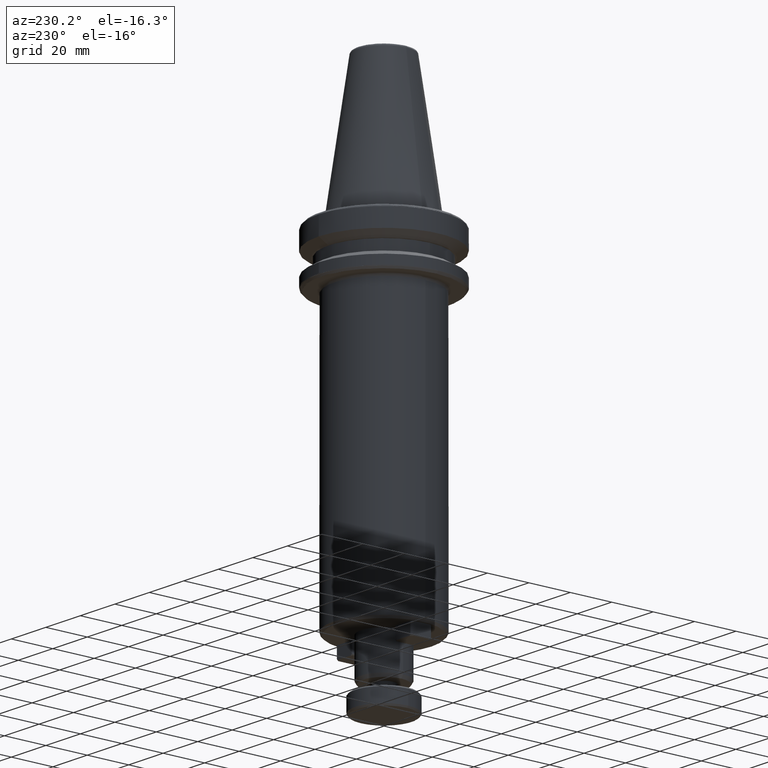
[diagram: clean part render]
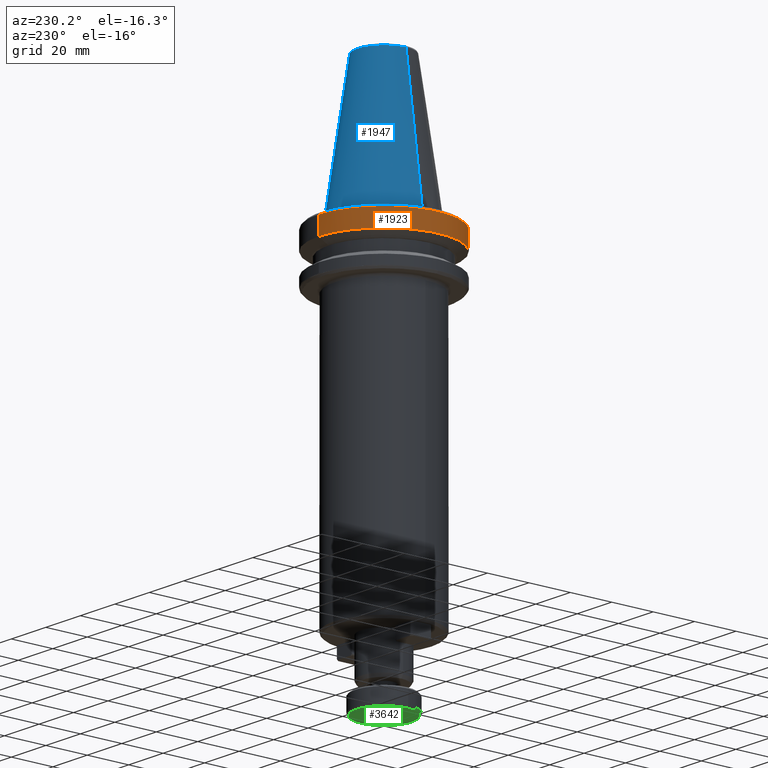
[diagram: same view with three faces highlighted in distinct colors, each labeled with its STEP entity id]
A machine part, auxiliary view with three faces highlighted in distinct colors.
Their STEP definitions:

[orange] entity #1923 — the highlighted cylindrical surface (partial cylindrical patch) has radius 31.5 mm, axis along (0, -0, 1).
#2 = AXIS2_PLACEMENT_3D ( 'NONE', #184, #1197, #1149 ) ;
#77 = CARTESIAN_POINT ( 'NONE',  ( 0.0000000000000000000, 0.0000000000000000000, -3.165685424999995100 ) ) ;
#85 = DIRECTION ( 'NONE',  ( 0.0000000000000000000, 0.0000000000000000000, 1.000000000000000000 ) ) ;
#102 = DIRECTION ( 'NONE',  ( 1.000000000000000000, 0.0000000000000000000, -1.514441129821022100E-016 ) ) ;
#125 = VERTEX_POINT ( 'NONE', #1668 ) ;
#139 = CIRCLE ( 'NONE', #1714, 31.50000000000000000 ) ;
#184 = CARTESIAN_POINT ( 'NONE',  ( 0.0000000000000000000, 0.0000000000000000000, -11.59985799400000100 ) ) ;
#299 = VERTEX_POINT ( 'NONE', #2197 ) ;
#364 = CARTESIAN_POINT ( 'NONE',  ( -8.717453372924149200, -30.26972095495584700, -3.165685424999995100 ) ) ;
#435 = EDGE_CURVE ( 'NONE', #3565, #2215, #941, .T. ) ;
#514 = CARTESIAN_POINT ( 'NONE',  ( 0.0000000000000000000, -31.50000000000000000, -3.165685424999995100 ) ) ;
#654 = EDGE_CURVE ( 'NONE', #125, #299, #792, .T. ) ;
#790 = VECTOR ( 'NONE', #1191, 1000.000000000000000 ) ;
#792 = LINE ( 'NONE', #1682, #790 ) ;
#874 = CYLINDRICAL_SURFACE ( 'NONE', #2, 31.50000000000000000 ) ;
#906 = VECTOR ( 'NONE', #2472, 1000.000000000000000 ) ;
#941 = LINE ( 'NONE', #2494, #906 ) ;
#1083 = AXIS2_PLACEMENT_3D ( 'NONE', #1796, #1735, #1785 ) ;
#1140 = FACE_OUTER_BOUND ( 'NONE', #2277, .T. ) ;
#1149 = DIRECTION ( 'NONE',  ( 0.0000000000000000000, -1.000000000000000000, 0.0000000000000000000 ) ) ;
#1191 = DIRECTION ( 'NONE',  ( 0.0000000000000000000, -2.753529326947312600E-017, 1.000000000000000000 ) ) ;
#1197 = DIRECTION ( 'NONE',  ( 0.0000000000000000000, -2.753529326947312600E-017, 1.000000000000000000 ) ) ;
#1257 = ORIENTED_EDGE ( 'NONE', *, *, #3301, .F. ) ;
#1415 = AXIS2_PLACEMENT_3D ( 'NONE', #2890, #2977, #3000 ) ;
#1569 = CARTESIAN_POINT ( 'NONE',  ( -8.717453372924143900, 30.26972095495585100, -3.165685424999995100 ) ) ;
#1594 = EDGE_CURVE ( 'NONE', #125, #3565, #139, .T. ) ;
#1668 = CARTESIAN_POINT ( 'NONE',  ( 3.857637417314165800E-015, 31.50000000000002800, -11.59985799399998500 ) ) ;
#1682 = CARTESIAN_POINT ( 'NONE',  ( 3.857637417314162700E-015, 31.50000000000000000, -11.59985799400000100 ) ) ;
#1714 = AXIS2_PLACEMENT_3D ( 'NONE', #1969, #1956, #1950 ) ;
#1735 = DIRECTION ( 'NONE',  ( -0.0000000000000000000, -0.0000000000000000000, 1.000000000000000000 ) ) ;
#1763 = VERTEX_POINT ( 'NONE', #1569 ) ;
#1785 = DIRECTION ( 'NONE',  ( 1.000000000000000000, 0.0000000000000000000, 0.0000000000000000000 ) ) ;
#1796 = CARTESIAN_POINT ( 'NONE',  ( 0.0000000000000000000, 0.0000000000000000000, -3.165685424999995100 ) ) ;
#1923 = ADVANCED_FACE ( 'NONE', ( #1140 ), #874, .T. ) ;
#1950 = DIRECTION ( 'NONE',  ( 1.000000000000000000, 0.0000000000000000000, -4.956352788505163300E-016 ) ) ;
#1956 = DIRECTION ( 'NONE',  ( 0.0000000000000000000, 0.0000000000000000000, 1.000000000000000000 ) ) ;
#1969 = CARTESIAN_POINT ( 'NONE',  ( 0.0000000000000000000, 0.0000000000000000000, -11.59985799399998500 ) ) ;
#2195 = ORIENTED_EDGE ( 'NONE', *, *, #654, .F. ) ;
#2197 = CARTESIAN_POINT ( 'NONE',  ( 3.857637417314162700E-015, 31.50000000000000000, -3.165685424999995100 ) ) ;
#2215 = VERTEX_POINT ( 'NONE', #514 ) ;
#2277 = EDGE_LOOP ( 'NONE', ( #2195, #2368, #2402, #2455, #1257, #2680 ) ) ;
#2343 = AXIS2_PLACEMENT_3D ( 'NONE', #77, #85, #102 ) ;
#2368 = ORIENTED_EDGE ( 'NONE', *, *, #1594, .T. ) ;
#2402 = ORIENTED_EDGE ( 'NONE', *, *, #435, .T. ) ;
#2455 = ORIENTED_EDGE ( 'NONE', *, *, #3445, .F. ) ;
#2472 = DIRECTION ( 'NONE',  ( 0.0000000000000000000, -2.753529326947312600E-017, 1.000000000000000000 ) ) ;
#2494 = CARTESIAN_POINT ( 'NONE',  ( 0.0000000000000000000, -31.50000000000000000, -11.59985799400000100 ) ) ;
#2680 = ORIENTED_EDGE ( 'NONE', *, *, #3551, .F. ) ;
#2841 = CIRCLE ( 'NONE', #2343, 31.50000000000000000 ) ;
#2872 = CARTESIAN_POINT ( 'NONE',  ( 0.0000000000000000000, -31.50000000000002800, -11.59985799399998500 ) ) ;
#2890 = CARTESIAN_POINT ( 'NONE',  ( 0.0000000000000000000, 0.0000000000000000000, -3.165685424999995100 ) ) ;
#2970 = VERTEX_POINT ( 'NONE', #364 ) ;
#2977 = DIRECTION ( 'NONE',  ( -0.0000000000000000000, -0.0000000000000000000, 1.000000000000000000 ) ) ;
#2999 = CIRCLE ( 'NONE', #1083, 31.50000000000000000 ) ;
#3000 = DIRECTION ( 'NONE',  ( 1.000000000000000000, 0.0000000000000000000, 0.0000000000000000000 ) ) ;
#3050 = CIRCLE ( 'NONE', #1415, 31.50000000000000000 ) ;
#3301 = EDGE_CURVE ( 'NONE', #1763, #2970, #2841, .T. ) ;
#3445 = EDGE_CURVE ( 'NONE', #2970, #2215, #2999, .T. ) ;
#3551 = EDGE_CURVE ( 'NONE', #299, #1763, #3050, .T. ) ;
#3565 = VERTEX_POINT ( 'NONE', #2872 ) ;

[blue] entity #1947 — the highlighted conical surface has half-angle 8.297 deg.
#1 = ORIENTED_EDGE ( 'NONE', *, *, #930, .T. ) ;
#3 = ORIENTED_EDGE ( 'NONE', *, *, #993, .F. ) ;
#167 = VERTEX_POINT ( 'NONE', #1663 ) ;
#172 = VERTEX_POINT ( 'NONE', #1690 ) ;
#181 = CARTESIAN_POINT ( 'NONE',  ( -12.81219950696881500, -1.150453881886354600E-009, 64.54430822699541200 ) ) ;
#479 = VECTOR ( 'NONE', #3290, 1000.000000000000000 ) ;
#501 = VECTOR ( 'NONE', #3330, 1000.000000000000000 ) ;
#512 = LINE ( 'NONE', #3404, #501 ) ;
#555 = CIRCLE ( 'NONE', #1061, 12.81219950700000300 ) ;
#560 = LINE ( 'NONE', #3297, #479 ) ;
#598 = CIRCLE ( 'NONE', #2397, 22.22499999999999800 ) ;
#724 = VERTEX_POINT ( 'NONE', #181 ) ;
#737 = CARTESIAN_POINT ( 'NONE',  ( 0.0000000000000000000, 0.0000000000000000000, 64.54430822700000200 ) ) ;
#930 = EDGE_CURVE ( 'NONE', #167, #3482, #598, .T. ) ;
#963 = EDGE_CURVE ( 'NONE', #172, #724, #555, .T. ) ;
#981 = EDGE_CURVE ( 'NONE', #172, #167, #512, .T. ) ;
#993 = EDGE_CURVE ( 'NONE', #724, #3482, #560, .T. ) ;
#1061 = AXIS2_PLACEMENT_3D ( 'NONE', #3319, #3318, #3313 ) ;
#1223 = DIRECTION ( 'NONE',  ( 1.000000000000000000, 0.0000000000000000000, 0.0000000000000000000 ) ) ;
#1583 = ORIENTED_EDGE ( 'NONE', *, *, #963, .F. ) ;
#1663 = CARTESIAN_POINT ( 'NONE',  ( 22.22499999999999800, 2.721777511104992100E-015, 0.0000000000000000000 ) ) ;
#1684 = EDGE_LOOP ( 'NONE', ( #1583, #3657, #1, #3 ) ) ;
#1690 = CARTESIAN_POINT ( 'NONE',  ( 12.81219950696690200, -3.941739068562204500E-009, 64.54430822700854300 ) ) ;
#1733 = FACE_OUTER_BOUND ( 'NONE', #1684, .T. ) ;
#1947 = ADVANCED_FACE ( 'NONE', ( #1733 ), #3792, .T. ) ;
#2010 = DIRECTION ( 'NONE',  ( 0.0000000000000000000, 0.0000000000000000000, -1.000000000000000000 ) ) ;
#2397 = AXIS2_PLACEMENT_3D ( 'NONE', #3347, #3342, #1223 ) ;
#2537 = CARTESIAN_POINT ( 'NONE',  ( -22.22499999999999800, 0.0000000000000000000, 0.0000000000000000000 ) ) ;
#2638 = AXIS2_PLACEMENT_3D ( 'NONE', #737, #2010, #3541 ) ;
#3290 = DIRECTION ( 'NONE',  ( -0.1443082272688266400, 0.0000000000000000000, -0.9895327864919528600 ) ) ;
#3297 = CARTESIAN_POINT ( 'NONE',  ( -12.81219950700000300, 0.0000000000000000000, 64.54430822700000200 ) ) ;
#3313 = DIRECTION ( 'NONE',  ( -1.000000000000000000, 8.881784197001252300E-016, 2.166339635943424900E-015 ) ) ;
#3318 = DIRECTION ( 'NONE',  ( -0.0000000000000000000, -0.0000000000000000000, 1.000000000000000000 ) ) ;
#3319 = CARTESIAN_POINT ( 'NONE',  ( 0.0000000000000000000, 0.0000000000000000000, 64.54430822699997300 ) ) ;
#3330 = DIRECTION ( 'NONE',  ( 0.1443082272688266400, 1.767266086153973400E-017, -0.9895327864919528600 ) ) ;
#3342 = DIRECTION ( 'NONE',  ( 0.0000000000000000000, 0.0000000000000000000, 1.000000000000000000 ) ) ;
#3347 = CARTESIAN_POINT ( 'NONE',  ( 0.0000000000000000000, 0.0000000000000000000, 0.0000000000000000000 ) ) ;
#3404 = CARTESIAN_POINT ( 'NONE',  ( 12.81219950700000300, 1.569041911628485000E-015, 64.54430822700000200 ) ) ;
#3482 = VERTEX_POINT ( 'NONE', #2537 ) ;
#3541 = DIRECTION ( 'NONE',  ( -1.000000000000000000, 0.0000000000000000000, 0.0000000000000000000 ) ) ;
#3657 = ORIENTED_EDGE ( 'NONE', *, *, #981, .T. ) ;
#3792 = CONICAL_SURFACE ( 'NONE', #2638, 12.81219950700000300, 0.1448138465489547400 ) ;

[green] entity #3642 — the highlighted planar face has unit normal (0, 0, 1).
#395 = CIRCLE ( 'NONE', #413, 13.29999999999994600 ) ;
#413 = AXIS2_PLACEMENT_3D ( 'NONE', #3068, #3067, #3062 ) ;
#491 = CARTESIAN_POINT ( 'NONE',  ( -13.29999999999994600, 1.671642880836133900E-015, -191.0000000000000600 ) ) ;
#1022 = AXIS2_PLACEMENT_3D ( 'NONE', #1072, #1101, #1117 ) ;
#1072 = CARTESIAN_POINT ( 'NONE',  ( 0.0000000000000000000, 0.0000000000000000000, -191.0000000000000600 ) ) ;
#1076 = EDGE_CURVE ( 'NONE', #3656, #3693, #395, .T. ) ;
#1101 = DIRECTION ( 'NONE',  ( -0.0000000000000000000, -0.0000000000000000000, -1.000000000000000000 ) ) ;
#1117 = DIRECTION ( 'NONE',  ( 1.000000000000000000, 0.0000000000000000000, 0.0000000000000000000 ) ) ;
#1295 = AXIS2_PLACEMENT_3D ( 'NONE', #3684, #3702, #2056 ) ;
#1911 = EDGE_LOOP ( 'NONE', ( #2410, #2419 ) ) ;
#2056 = DIRECTION ( 'NONE',  ( 1.000000000000000000, 0.0000000000000000000, 0.0000000000000000000 ) ) ;
#2410 = ORIENTED_EDGE ( 'NONE', *, *, #3394, .T. ) ;
#2419 = ORIENTED_EDGE ( 'NONE', *, *, #1076, .T. ) ;
#2900 = CIRCLE ( 'NONE', #1022, 13.29999999999994600 ) ;
#3010 = FACE_OUTER_BOUND ( 'NONE', #1911, .T. ) ;
#3062 = DIRECTION ( 'NONE',  ( 1.000000000000000000, 0.0000000000000000000, 0.0000000000000000000 ) ) ;
#3067 = DIRECTION ( 'NONE',  ( -0.0000000000000000000, -0.0000000000000000000, -1.000000000000000000 ) ) ;
#3068 = CARTESIAN_POINT ( 'NONE',  ( 0.0000000000000000000, 0.0000000000000000000, -191.0000000000000600 ) ) ;
#3394 = EDGE_CURVE ( 'NONE', #3693, #3656, #2900, .T. ) ;
#3567 = PLANE ( 'NONE',  #1295 ) ;
#3642 = ADVANCED_FACE ( 'NONE', ( #3010 ), #3567, .F. ) ;
#3656 = VERTEX_POINT ( 'NONE', #491 ) ;
#3684 = CARTESIAN_POINT ( 'NONE',  ( -13.45960000000000200, -13.45960000000000200, -191.0000000000000000 ) ) ;
#3693 = VERTEX_POINT ( 'NONE', #3754 ) ;
#3702 = DIRECTION ( 'NONE',  ( 0.0000000000000000000, 0.0000000000000000000, 1.000000000000000000 ) ) ;
#3754 = CARTESIAN_POINT ( 'NONE',  ( 13.29999999999994600, 0.0000000000000000000, -191.0000000000000600 ) ) ;